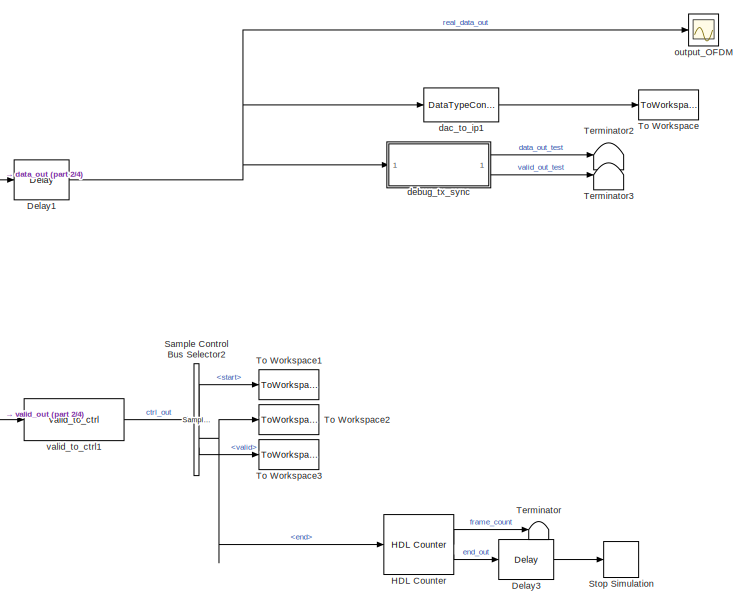
[diagram: root canvas - part 1/4, top right region]
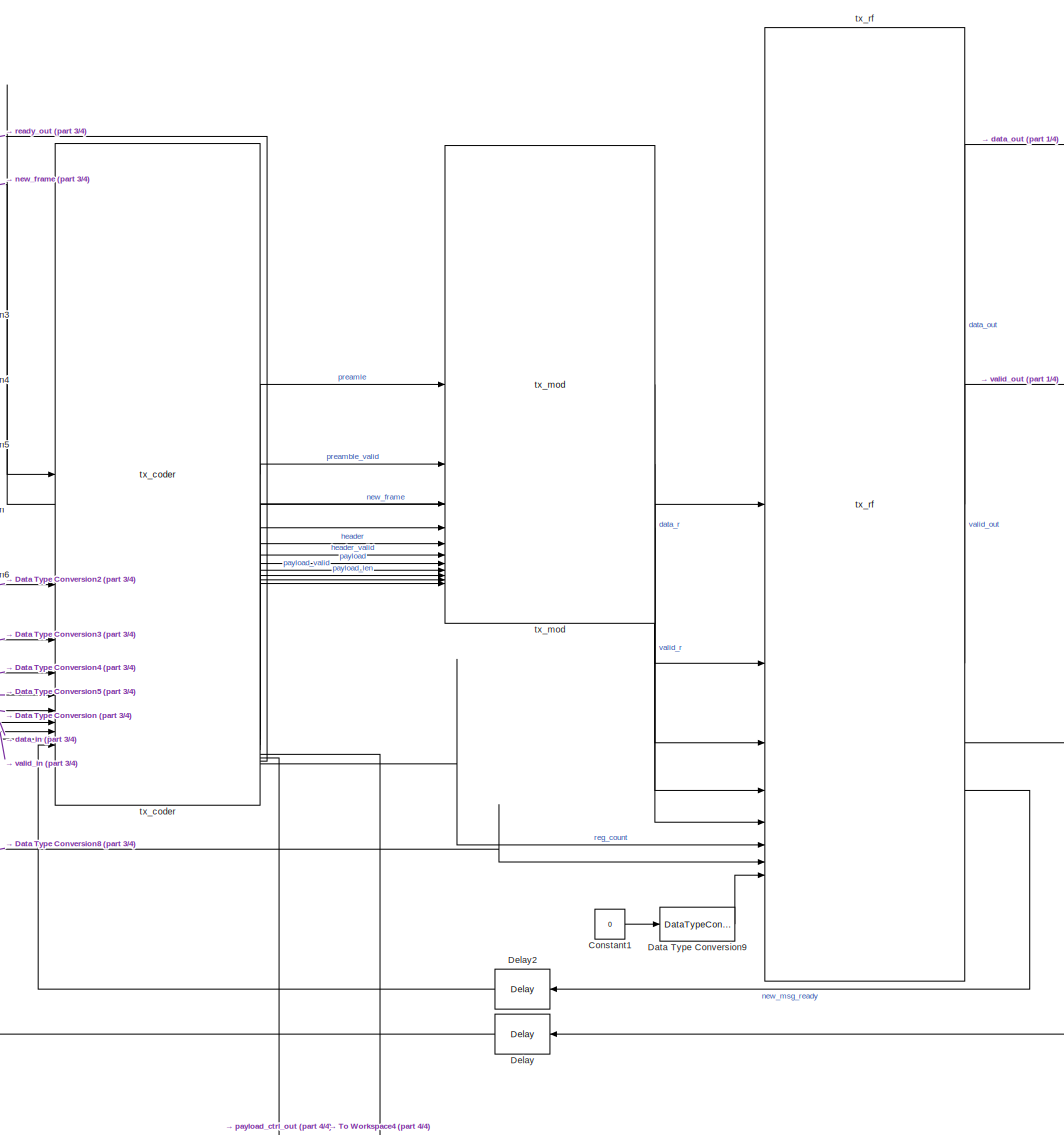
[diagram: root canvas - part 2/4, center side, full height]
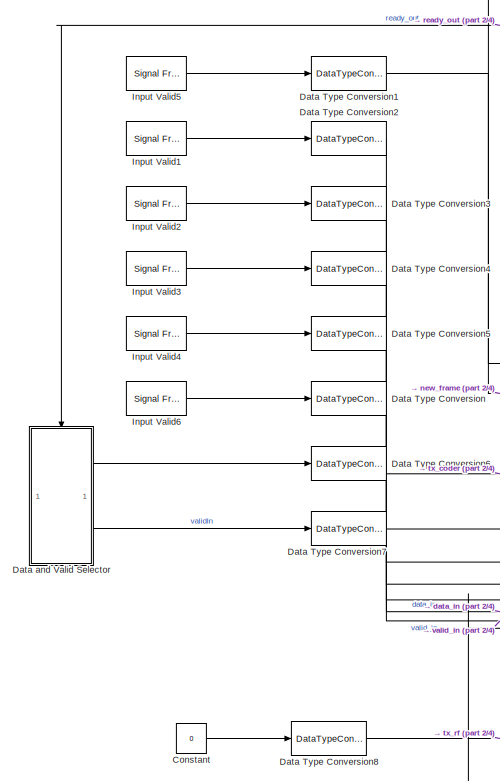
[diagram: root canvas - part 3/4, middle left region]
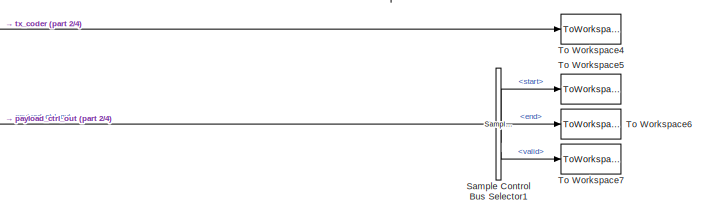
[diagram: root canvas - part 4/4, bottom center region]
MODEL slx_747a787346ba
KIND model
CONFIG AbsTol = auto
CONFIG EnableMultiTasking = off
CONFIG FixedStep = auto
CONFIG MaxStep = auto
CONFIG MinStep = auto
CONFIG RelTol = 1e-3
CONFIG SampleTimeConstraint = Unconstrained
CONFIG SolverName = FixedStepDiscrete
CONFIG StartTime = 0.0
CONFIG StopTime = stopTime
BLOCK [Constant] Constant
  OutDataTypeStr = uint32
  SampleTime = 1/CONST.fDAC
  Value = 0
BLOCK [Constant] Constant1
  OutDataTypeStr = boolean
  SampleTime = 1/CONST.fDAC
  Value = 0
BLOCK [DataTypeConversion] Data Type Conversion
  OutDataTypeStr = boolean
  RndMeth = Floor
  SaturateOnIntegerOverflow = off
BLOCK [DataTypeConversion] Data Type Conversion1
  OutDataTypeStr = boolean
  RndMeth = Floor
  SaturateOnIntegerOverflow = off
BLOCK [DataTypeConversion] Data Type Conversion2
  OutDataTypeStr = uint32
  RndMeth = Floor
  SaturateOnIntegerOverflow = off
BLOCK [DataTypeConversion] Data Type Conversion3
  OutDataTypeStr = uint32
  RndMeth = Floor
  SaturateOnIntegerOverflow = off
BLOCK [DataTypeConversion] Data Type Conversion4
  OutDataTypeStr = uint32
  RndMeth = Floor
  SaturateOnIntegerOverflow = off
BLOCK [DataTypeConversion] Data Type Conversion5
  OutDataTypeStr = uint32
  RndMeth = Floor
  SaturateOnIntegerOverflow = off
BLOCK [DataTypeConversion] Data Type Conversion6
  OutDataTypeStr = uint8
  RndMeth = Floor
  SaturateOnIntegerOverflow = off
BLOCK [DataTypeConversion] Data Type Conversion7
  OutDataTypeStr = boolean
  RndMeth = Floor
  SaturateOnIntegerOverflow = off
BLOCK [DataTypeConversion] Data Type Conversion8
  OutDataTypeStr = uint32
  RndMeth = Floor
  SaturateOnIntegerOverflow = off
BLOCK [DataTypeConversion] Data Type Conversion9
  OutDataTypeStr = boolean
  RndMeth = Floor
  SaturateOnIntegerOverflow = off
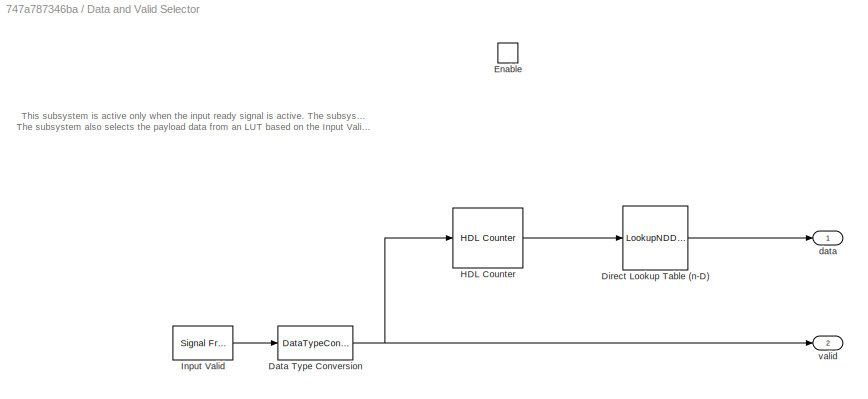
BLOCK [SubSystem] Data and Valid Selector
  TreatAsAtomicUnit = on
BLOCK [DataTypeConversion] Data and Valid Selector/Data Type Conversion
  OutDataTypeStr = boolean
  RndMeth = Floor
  SaturateOnIntegerOverflow = off
BLOCK [LookupNDDirect] Data and Valid Selector/Direct Lookup Table (n-D)
  DiagnosticForOutOfRangeInput = Error
  NumberOfTableDimensions = 1
  Table = uint8(pWords')
  TableDataTypeStr = uint8
BLOCK [EnablePort] Data and Valid Selector/Enable
BLOCK [Reference] Data and Valid Selector/HDL Counter  REF=hdlsllib/Sources/HDL Counter
  SourceBlock = hdlsllib/Sources/HDL Counter
  SourceType = HDL Counter
BLOCK [Reference] Data and Valid Selector/Input Valid  REF=dspsrcs4/Signal From
Workspace
  SourceBlock = dspsrcs4/Signal From\nWorkspace
  SourceType = Signal From Workspace
BLOCK [Outport] Data and Valid Selector/data
  InitialOutput = 0
  VectorParamsAs1DForOutWhenUnconnected = off
BLOCK [Outport] Data and Valid Selector/valid
  InitialOutput = 0
  Port = 2
  VectorParamsAs1DForOutWhenUnconnected = off
BLOCK [Delay] Delay
  DelayLength = 1
  InitialCondition = 0
  InputPortMap = u0
  NameLocation = top
  UseCircularBuffer = on
  UserDataPersistent = on
BLOCK [Delay] Delay1
  DelayLength = 1
  InitialCondition = 0
  InputPortMap = u0
  UseCircularBuffer = on
  UserDataPersistent = on
BLOCK [Delay] Delay2
  DelayLength = 1
  InitialCondition = 0
  InputPortMap = u0
  NameLocation = top
  UseCircularBuffer = on
  UserDataPersistent = on
BLOCK [Delay] Delay3
  DelayLength = 50
  InitialCondition = 0
  InputPortMap = u0
  UseCircularBuffer = on
  UserDataPersistent = on
BLOCK [Reference] HDL Counter  REF=hdlsllib/Sources/HDL Counter
  SourceBlock = hdlsllib/Sources/HDL Counter
  SourceType = HDL Counter
BLOCK [Reference] Input Valid1  REF=dspsrcs4/Signal From
Workspace
  SourceBlock = dspsrcs4/Signal From\nWorkspace
  SourceType = Signal From Workspace
BLOCK [Reference] Input Valid2  REF=dspsrcs4/Signal From
Workspace
  SourceBlock = dspsrcs4/Signal From\nWorkspace
  SourceType = Signal From Workspace
BLOCK [Reference] Input Valid3  REF=dspsrcs4/Signal From
Workspace
  SourceBlock = dspsrcs4/Signal From\nWorkspace
  SourceType = Signal From Workspace
BLOCK [Reference] Input Valid4  REF=dspsrcs4/Signal From
Workspace
  SourceBlock = dspsrcs4/Signal From\nWorkspace
  SourceType = Signal From Workspace
BLOCK [Reference] Input Valid5  REF=dspsrcs4/Signal From
Workspace
  SourceBlock = dspsrcs4/Signal From\nWorkspace
  SourceType = Signal From Workspace
BLOCK [Reference] Input Valid6  REF=dspsrcs4/Signal From
Workspace
  SourceBlock = dspsrcs4/Signal From\nWorkspace
  SourceType = Signal From Workspace
BLOCK [Reference] Sample Control Bus Selector1  REF=whdlutilities/Sample Control
Bus Selector
  SourceBlock = whdlutilities/Sample Control\nBus Selector
BLOCK [Reference] Sample Control Bus Selector2  REF=whdlutilities/Sample Control
Bus Selector
  SourceBlock = whdlutilities/Sample Control\nBus Selector
BLOCK [Stop] Stop Simulation
BLOCK [Terminator] Terminator
BLOCK [Terminator] Terminator2
BLOCK [Terminator] Terminator3
BLOCK [ToWorkspace] To Workspace
  MaxDataPoints = inf
  SampleTime = 1/CONST.fDAC
  Save2DSignal = 2-D array (concatenate along first dimension)
  VariableName = dataOut
BLOCK [ToWorkspace] To Workspace1
  MaxDataPoints = inf
  SampleTime = 1/CONST.fDAC
  Save2DSignal = 2-D array (concatenate along first dimension)
  VariableName = startOut
BLOCK [ToWorkspace] To Workspace2
  MaxDataPoints = inf
  SampleTime = 1/CONST.fDAC
  Save2DSignal = 2-D array (concatenate along first dimension)
  VariableName = endOut
BLOCK [ToWorkspace] To Workspace3
  MaxDataPoints = inf
  SampleTime = 1/CONST.fDAC
  Save2DSignal = 2-D array (concatenate along first dimension)
  VariableName = validOut
BLOCK [ToWorkspace] To Workspace4
  MaxDataPoints = inf
  SampleTime = 1/CONST.fs
  Save2DSignal = 2-D array (concatenate along first dimension)
  VariableName = dataOut1
BLOCK [ToWorkspace] To Workspace5
  MaxDataPoints = inf
  SampleTime = 1/CONST.fs
  Save2DSignal = 2-D array (concatenate along first dimension)
  VariableName = startOut1
BLOCK [ToWorkspace] To Workspace6
  MaxDataPoints = inf
  SampleTime = 1/CONST.fs
  Save2DSignal = 2-D array (concatenate along first dimension)
  VariableName = endOut1
BLOCK [ToWorkspace] To Workspace7
  MaxDataPoints = inf
  SampleTime = 1/CONST.fs
  Save2DSignal = 2-D array (concatenate along first dimension)
  VariableName = validOut1
BLOCK [DataTypeConversion] dac_to_ip1
  ConvertRealWorld = Stored Integer (SI)
  OutDataTypeStr = fixdt(1,14,13)
  RndMeth = Floor
  SaturateOnIntegerOverflow = off
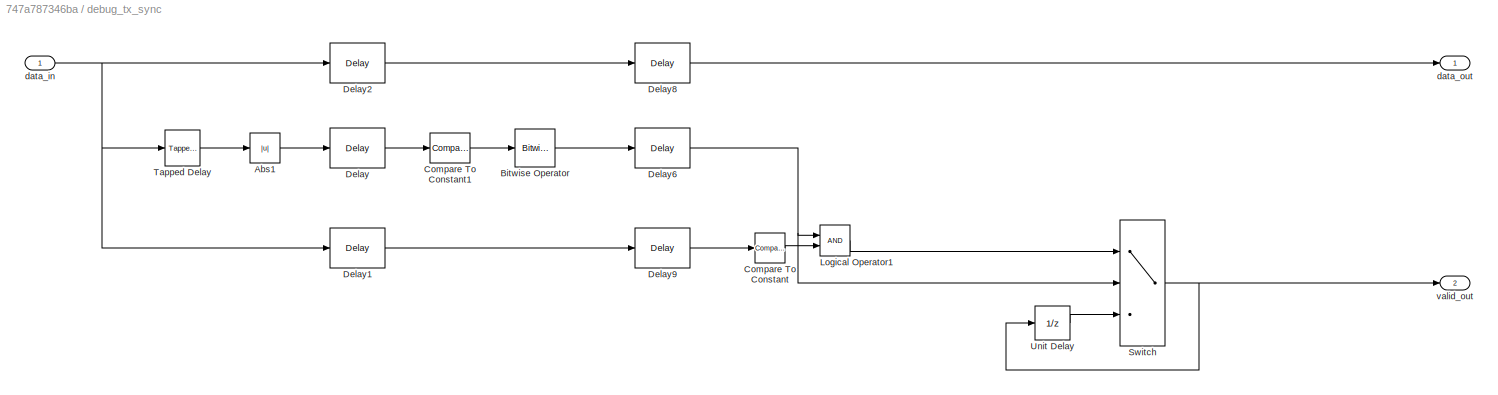
BLOCK [SubSystem] debug_tx_sync
BLOCK [Abs] debug_tx_sync/Abs1
  SaturateOnIntegerOverflow = off
BLOCK [Reference] debug_tx_sync/Bitwise Operator  REF=simulink/Logic and Bit
Operations/Bitwise
Operator
  LibrarySourceBlock = hdlsllib/Logic and Bit\nOperations/Bitwise\nOperator
  SourceBlock = simulink/Logic and Bit\nOperations/Bitwise\nOperator
  SourceType = Bitwise Operator
BLOCK [Reference] debug_tx_sync/Compare To Constant  REF=hdlsllib/Logic and Bit
Operations/Compare
To Constant
  SourceBlock = hdlsllib/Logic and Bit\nOperations/Compare\nTo Constant
  SourceType = Compare To Constant
BLOCK [Reference] debug_tx_sync/Compare To Constant1  REF=hdlsllib/Logic and Bit
Operations/Compare
To Constant
  SourceBlock = hdlsllib/Logic and Bit\nOperations/Compare\nTo Constant
  SourceType = Compare To Constant
BLOCK [Delay] debug_tx_sync/Delay
  DelayLength = 1
  InitialCondition = 0
  InputPortMap = u0
  UseCircularBuffer = on
  UserDataPersistent = on
BLOCK [Delay] debug_tx_sync/Delay1
  DelayLength = 1
  InitialCondition = 0
  InputPortMap = u0
  UseCircularBuffer = on
  UserDataPersistent = on
BLOCK [Delay] debug_tx_sync/Delay2
  DelayLength = 1
  InitialCondition = 0
  InputPortMap = u0
  UseCircularBuffer = on
  UserDataPersistent = on
BLOCK [Delay] debug_tx_sync/Delay6
  DelayLength = 1
  InitialCondition = 0
  InputPortMap = u0
  UseCircularBuffer = on
  UserDataPersistent = on
BLOCK [Delay] debug_tx_sync/Delay8
  DelayLength = 1
  InitialCondition = 0
  InputPortMap = u0
  UseCircularBuffer = on
  UserDataPersistent = on
BLOCK [Delay] debug_tx_sync/Delay9
  DelayLength = 1
  InitialCondition = 0
  InputPortMap = u0
  UseCircularBuffer = on
  UserDataPersistent = on
BLOCK [Logic] debug_tx_sync/Logical Operator1
  AllPortsSameDT = off
  OutDataTypeStr = boolean
BLOCK [Switch] debug_tx_sync/Switch
  Criteria = u2 ~= 0
  InputSameDT = off
  SaturateOnIntegerOverflow = off
BLOCK [Reference] debug_tx_sync/Tapped Delay  REF=simulink/Discrete/Tapped Delay
  LibrarySourceBlock = hdlsllib/Discrete/Tapped Delay
  SourceBlock = simulink/Discrete/Tapped Delay
  SourceType = Tapped Delay Line
BLOCK [UnitDelay] debug_tx_sync/Unit Delay
  HasFrameUpgradeWarning = on
  SampleTime = -1
BLOCK [Inport] debug_tx_sync/data_in
BLOCK [Outport] debug_tx_sync/data_out
BLOCK [Outport] debug_tx_sync/valid_out
  Port = 2
BLOCK [Scope] output_OFDM
  Floating = off
  NumInputPorts = 1
  ScopeSpecificationString = Simulink.scopes.TimeScopeBlockCfg('CurrentConfiguration', extmgr.ConfigurationSet(extmgr.Configuration('Core','General UI',true),extmgr.Configuration('Core','Source UI',true),extmgr.Configuration('Sources','WiredSimulink',true,'DataLoggingSaveFormat','Array','DataLoggingDecimation','1'),extmgr.Configuration('Visuals','Time Domain',true,'SerializedDisplays',{struct('MinYLimReal','-6191.75','MaxYLim...<+1709ch>
BLOCK [Reference] tx_coder  REF=HDL_ieee_8021513/tx_coder
  SourceBlock = HDL_ieee_8021513/tx_coder
  SourceProductName = HDL IEEE 8021513
  SourceType = SubSystem
BLOCK [Reference] tx_mod  REF=HDL_ieee_8021513/tx_mod
  SourceBlock = HDL_ieee_8021513/tx_mod
  SourceProductName = HDL IEEE 8021513
  SourceType = SubSystem
BLOCK [Reference] tx_rf  REF=HDL_ieee_8021513/tx_rf
  SourceBlock = HDL_ieee_8021513/tx_rf
  SourceProductName = HDL IEEE 8021513
  SourceType = SubSystem
BLOCK [Reference] valid_to_ctrl1  REF=HDL_ieee_8021513/valid_to_ctrl
  SourceBlock = HDL_ieee_8021513/valid_to_ctrl
  SourceProductName = HDL IEEE 8021513
  SourceType = SubSystem
ANNOTATION Data and Valid Selector: This subsystem is active only when the input ready signal is active. The subsystem selects the Input Valid value and outputs the valid signal. The subsystem also selects the payload data from an LUT based on the Input Valid signal and outputs it as data signal.
LINE Constant1:1 -> Data Type Conversion9:1
LINE Constant:1 -> Data Type Conversion8:1
NET Data Type Conversion1:1 -> tx_coder:1, tx_rf:1
LINE Data Type Conversion2:1 -> tx_coder:2
LINE Data Type Conversion3:1 -> tx_coder:3
LINE Data Type Conversion4:1 -> tx_coder:4
LINE Data Type Conversion5:1 -> tx_coder:5
LINE Data Type Conversion6:1 -> tx_coder:7
LINE Data Type Conversion7:1 -> tx_coder:8
LINE Data Type Conversion8:1 -> tx_rf:7
LINE Data Type Conversion9:1 -> tx_rf:8
LINE Data Type Conversion:1 -> tx_coder:6
NET Data and Valid Selector/Data Type Conversion:1 -> Data and Valid Selector/HDL Counter:1, Data and Valid Selector/valid:1
LINE Data and Valid Selector/Direct Lookup Table (n-D):1 -> Data and Valid Selector/data:1
LINE Data and Valid Selector/HDL Counter:1 -> Data and Valid Selector/Direct Lookup Table (n-D):1
LINE Data and Valid Selector/Input Valid:1 -> Data and Valid Selector/Data Type Conversion:1
LINE Data and Valid Selector:1 -> Data Type Conversion6:1
LINE Data and Valid Selector:2 -> Data Type Conversion7:1
NET Delay1:1 -> dac_to_ip1:1, debug_tx_sync:1, output_OFDM:1
LINE Delay2:1 -> tx_coder:10
LINE Delay3:1 -> Stop Simulation:1
LINE Delay:1 -> tx_coder:9
LINE HDL Counter:1 -> Terminator:1
LINE HDL Counter:2 -> Delay3:1
LINE Input Valid1:1 -> Data Type Conversion2:1
LINE Input Valid2:1 -> Data Type Conversion3:1
LINE Input Valid3:1 -> Data Type Conversion4:1
LINE Input Valid4:1 -> Data Type Conversion5:1
LINE Input Valid5:1 -> Data Type Conversion1:1
LINE Input Valid6:1 -> Data Type Conversion:1
LINE Sample Control Bus Selector1:1 -> To Workspace5:1
LINE Sample Control Bus Selector1:2 -> To Workspace6:1
LINE Sample Control Bus Selector1:3 -> To Workspace7:1
LINE Sample Control Bus Selector2:1 -> To Workspace1:1
NET Sample Control Bus Selector2:2 -> HDL Counter:1, To Workspace2:1
LINE Sample Control Bus Selector2:3 -> To Workspace3:1
LINE dac_to_ip1:1 -> To Workspace:1
LINE debug_tx_sync/Abs1:1 -> debug_tx_sync/Delay:1
LINE debug_tx_sync/Bitwise Operator:1 -> debug_tx_sync/Delay6:1
LINE debug_tx_sync/Compare To Constant1:1 -> debug_tx_sync/Bitwise Operator:1
LINE debug_tx_sync/Compare To Constant:1 -> debug_tx_sync/Logical Operator1:2
LINE debug_tx_sync/Delay1:1 -> debug_tx_sync/Delay9:1
LINE debug_tx_sync/Delay2:1 -> debug_tx_sync/Delay8:1
NET debug_tx_sync/Delay6:1 -> debug_tx_sync/Logical Operator1:1, debug_tx_sync/Switch:2
LINE debug_tx_sync/Delay8:1 -> debug_tx_sync/data_out:1
LINE debug_tx_sync/Delay9:1 -> debug_tx_sync/Compare To Constant:1
LINE debug_tx_sync/Delay:1 -> debug_tx_sync/Compare To Constant1:1
LINE debug_tx_sync/Logical Operator1:1 -> debug_tx_sync/Switch:1
NET debug_tx_sync/Switch:1 -> debug_tx_sync/Unit Delay:1, debug_tx_sync/valid_out:1
LINE debug_tx_sync/Tapped Delay:1 -> debug_tx_sync/Abs1:1
LINE debug_tx_sync/Unit Delay:1 -> debug_tx_sync/Switch:3
NET debug_tx_sync/data_in:1 -> debug_tx_sync/Delay1:1, debug_tx_sync/Delay2:1, debug_tx_sync/Tapped Delay:1
LINE debug_tx_sync:1 -> Terminator2:1
LINE debug_tx_sync:2 -> Terminator3:1
LINE tx_coder:1 -> tx_mod:1
LINE tx_coder:10 -> tx_mod:10
LINE tx_coder:11 -> tx_mod:11
LINE tx_coder:12 -> To Workspace4:1
LINE tx_coder:13 -> Sample Control Bus Selector1:1
LINE tx_coder:14 -> Data and Valid Selector:enable
LINE tx_coder:15 -> tx_rf:6
LINE tx_coder:2 -> tx_mod:2
LINE tx_coder:3 -> tx_mod:3
LINE tx_coder:4 -> tx_mod:4
LINE tx_coder:5 -> tx_mod:5
LINE tx_coder:6 -> tx_mod:6
LINE tx_coder:7 -> tx_mod:7
LINE tx_coder:8 -> tx_mod:8
LINE tx_coder:9 -> tx_mod:9
LINE tx_mod:1 -> tx_rf:2
LINE tx_mod:2 -> tx_rf:3
LINE tx_mod:3 -> tx_rf:4
LINE tx_mod:4 -> tx_rf:5
LINE tx_rf:1 -> Delay1:1
LINE tx_rf:2 -> valid_to_ctrl1:1
LINE tx_rf:3 -> Delay:1
LINE tx_rf:4 -> Delay2:1
LINE valid_to_ctrl1:1 -> Sample Control Bus Selector2:1
note: NET lines group one-source signal fan-out (src -> all destinations, sorted); 1:1 wires keep LINE
